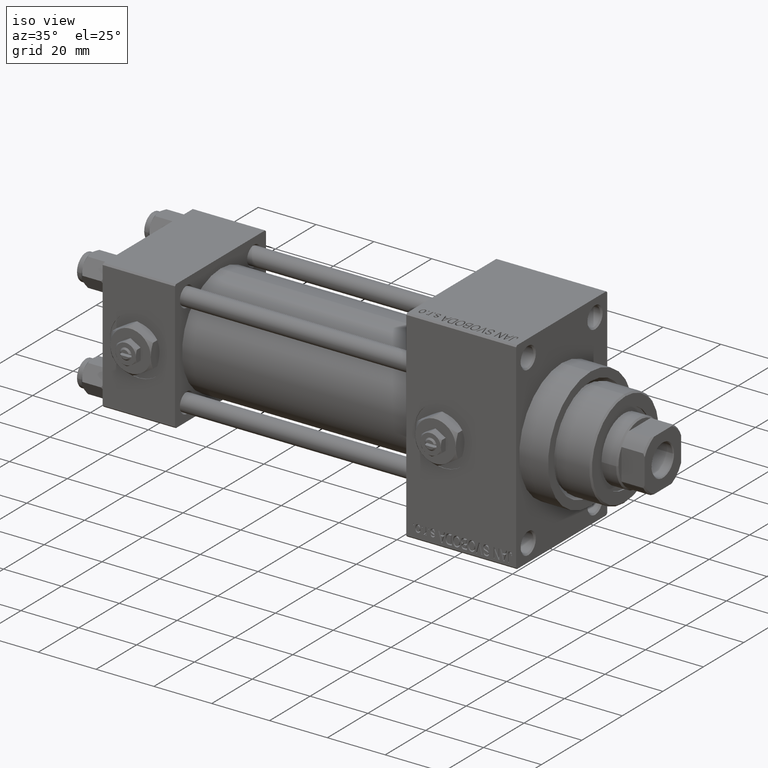
[diagram: clean part render]
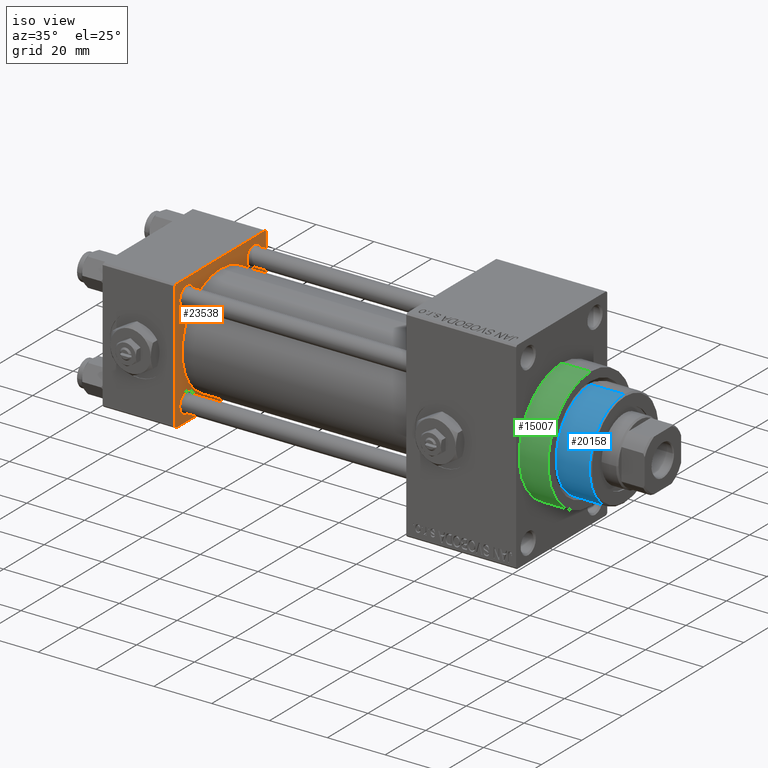
[diagram: same view with three faces highlighted in distinct colors, each labeled with its STEP entity id]
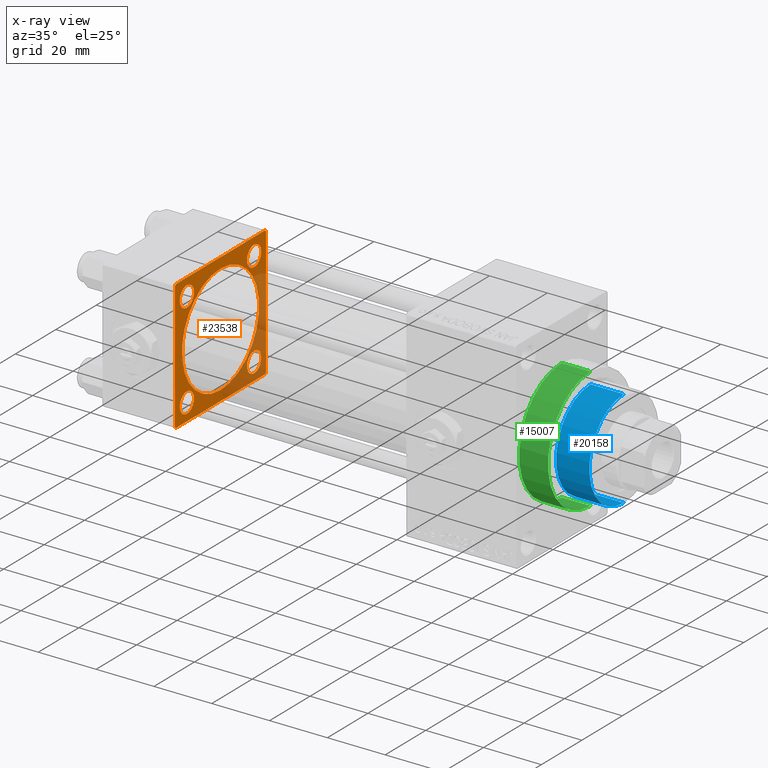
[diagram: x-ray of the same camera — body ghosted, the three highlighted faces saturated]
A machine part, iso view with three faces highlighted in distinct colors.
The next image is the same camera in x-ray (body ghosted, the three faces saturated) — at least one of them is partly hidden behind the body in this view.
Their STEP definitions:

[orange] entity #23538 — the highlighted planar face has unit normal (-1, 0, 0).
#805 = DIRECTION ( 'NONE',  ( 1.000000000000000000, -0.000000000000000000, 0.000000000000000000 ) ) ;
#858 = FACE_BOUND ( 'NONE', #39138, .T. ) ;
#1271 = CARTESIAN_POINT ( 'NONE',  ( 25.00000000000000000, 16.59999999999999787, 16.60000000000000497 ) ) ;
#1344 = ORIENTED_EDGE ( 'NONE', *, *, #44221, .F. ) ;
#1500 = DIRECTION ( 'NONE',  ( 0.000000000000000000, 0.000000000000000000, -1.000000000000000000 ) ) ;
#1614 = EDGE_CURVE ( 'NONE', #6167, #11711, #8585, .T. ) ;
#1843 = CARTESIAN_POINT ( 'NONE',  ( 25.00000000000000000, -21.99999999999998579, -22.50000000000000711 ) ) ;
#1974 = VECTOR ( 'NONE', #6111, 1000.000000000000000 ) ;
#2540 = LINE ( 'NONE', #17703, #37339 ) ;
#2580 = CARTESIAN_POINT ( 'NONE',  ( 25.00000000000000000, -16.59999999999999076, 16.60000000000000853 ) ) ;
#3833 = VERTEX_POINT ( 'NONE', #37562 ) ;
#4090 = EDGE_CURVE ( 'NONE', #29778, #9136, #20593, .T. ) ;
#4468 = DIRECTION ( 'NONE',  ( 0.000000000000000000, 0.000000000000000000, 1.000000000000000000 ) ) ;
#4680 = EDGE_LOOP ( 'NONE', ( #40635, #34208 ) ) ;
#5420 = DIRECTION ( 'NONE',  ( -1.000000000000000000, 0.000000000000000000, -0.000000000000000000 ) ) ;
#5829 = DIRECTION ( 'NONE',  ( 0.000000000000000000, 0.7071067811865426878, -0.7071067811865524577 ) ) ;
#6111 = DIRECTION ( 'NONE',  ( 0.000000000000000000, -1.000000000000000000, -7.709882115452476934E-17 ) ) ;
#6167 = VERTEX_POINT ( 'NONE', #42055 ) ;
#6522 = VERTEX_POINT ( 'NONE', #12578 ) ;
#6644 = CARTESIAN_POINT ( 'NONE',  ( 25.00000000000000000, 22.50000000000000000, -21.99999999999996803 ) ) ;
#7137 = EDGE_CURVE ( 'NONE', #45757, #10026, #47011, .T. ) ;
#7352 = EDGE_CURVE ( 'NONE', #46571, #14000, #28654, .T. ) ;
#7359 = EDGE_LOOP ( 'NONE', ( #33153, #49107 ) ) ;
#7494 = EDGE_CURVE ( 'NONE', #40485, #33703, #44561, .T. ) ;
#8081 = ORIENTED_EDGE ( 'NONE', *, *, #45818, .T. ) ;
#8585 = CIRCLE ( 'NONE', #49056, 3.499999999999978684 ) ;
#8824 = FACE_BOUND ( 'NONE', #7359, .T. ) ;
#9019 = DIRECTION ( 'NONE',  ( 1.000000000000000000, -0.000000000000000000, 0.000000000000000000 ) ) ;
#9136 = VERTEX_POINT ( 'NONE', #43025 ) ;
#9465 = DIRECTION ( 'NONE',  ( -1.000000000000000000, 0.000000000000000000, -0.000000000000000000 ) ) ;
#9909 = ORIENTED_EDGE ( 'NONE', *, *, #37568, .T. ) ;
#10026 = VERTEX_POINT ( 'NONE', #6644 ) ;
#10408 = CARTESIAN_POINT ( 'NONE',  ( 25.00000000000000000, -16.59999999999999076, 20.09999999999998721 ) ) ;
#10584 = CIRCLE ( 'NONE', #28052, 3.500000000000031086 ) ;
#11090 = EDGE_LOOP ( 'NONE', ( #41191, #24725, #1344, #12836, #32635, #9909, #8081, #46421 ) ) ;
#11218 = AXIS2_PLACEMENT_3D ( 'NONE', #39457, #5420, #20563 ) ;
#11468 = DIRECTION ( 'NONE',  ( -1.000000000000000000, 0.000000000000000000, -0.000000000000000000 ) ) ;
#11580 = FACE_BOUND ( 'NONE', #24299, .T. ) ;
#11711 = VERTEX_POINT ( 'NONE', #10408 ) ;
#11936 = VECTOR ( 'NONE', #35836, 1000.000000000000000 ) ;
#12376 = CIRCLE ( 'NONE', #38563, 3.499999999999989342 ) ;
#12475 = DIRECTION ( 'NONE',  ( 0.000000000000000000, 0.000000000000000000, 1.000000000000000000 ) ) ;
#12528 = DIRECTION ( 'NONE',  ( -1.000000000000000000, 0.000000000000000000, -0.000000000000000000 ) ) ;
#12578 = CARTESIAN_POINT ( 'NONE',  ( 25.00000000000000000, 16.59999999999999787, 20.10000000000003340 ) ) ;
#12836 = ORIENTED_EDGE ( 'NONE', *, *, #7494, .T. ) ;
#13117 = VERTEX_POINT ( 'NONE', #30686 ) ;
#13316 = EDGE_CURVE ( 'NONE', #6522, #3833, #37566, .T. ) ;
#13384 = EDGE_CURVE ( 'NONE', #3833, #6522, #10584, .T. ) ;
#13566 = DIRECTION ( 'NONE',  ( 0.000000000000000000, 0.000000000000000000, 1.000000000000000000 ) ) ;
#13892 = AXIS2_PLACEMENT_3D ( 'NONE', #40667, #25016, #13566 ) ;
#14000 = VERTEX_POINT ( 'NONE', #34892 ) ;
#14808 = CIRCLE ( 'NONE', #28276, 19.00000000000000000 ) ;
#15700 = CARTESIAN_POINT ( 'NONE',  ( 24.99999999999999289, -2.752562955852396712E-16, -19.00000000000000000 ) ) ;
#16016 = VERTEX_POINT ( 'NONE', #15700 ) ;
#16950 = EDGE_CURVE ( 'NONE', #11711, #6167, #37691, .T. ) ;
#17297 = VERTEX_POINT ( 'NONE', #30823 ) ;
#17620 = EDGE_LOOP ( 'NONE', ( #19759, #43509 ) ) ;
#17703 = CARTESIAN_POINT ( 'NONE',  ( 25.00000000000000000, 22.50000000000000000, -22.49999999999999645 ) ) ;
#18864 = CARTESIAN_POINT ( 'NONE',  ( 25.00000000000000000, 16.59999999999999787, -16.60000000000000497 ) ) ;
#19103 = DIRECTION ( 'NONE',  ( -1.000000000000000000, 0.000000000000000000, -0.000000000000000000 ) ) ;
#19367 = CARTESIAN_POINT ( 'NONE',  ( 25.00000000000000000, -16.59999999999999076, -16.60000000000000853 ) ) ;
#19516 = DIRECTION ( 'NONE',  ( -0.000000000000000000, 0.000000000000000000, 1.000000000000000000 ) ) ;
#19759 = ORIENTED_EDGE ( 'NONE', *, *, #39443, .T. ) ;
#19892 = CARTESIAN_POINT ( 'NONE',  ( 25.00000000000000000, 22.50000000000000000, 22.50000000000000355 ) ) ;
#20563 = DIRECTION ( 'NONE',  ( 0.000000000000000000, 0.000000000000000000, 1.000000000000000000 ) ) ;
#20593 = CIRCLE ( 'NONE', #22218, 3.499999999999989342 ) ;
#20655 = CARTESIAN_POINT ( 'NONE',  ( 25.00000000000000000, 22.50000000000000000, -21.99999999999998224 ) ) ;
#22218 = AXIS2_PLACEMENT_3D ( 'NONE', #18864, #19103, #30554 ) ;
#22726 = AXIS2_PLACEMENT_3D ( 'NONE', #39321, #805, #12475 ) ;
#23489 = FACE_BOUND ( 'NONE', #4680, .T. ) ;
#23538 = ADVANCED_FACE ( 'NONE', ( #11580, #42126, #858, #8824, #23489, #23975 ), #26743, .F. ) ;
#23975 = FACE_OUTER_BOUND ( 'NONE', #11090, .T. ) ;
#24024 = EDGE_CURVE ( 'NONE', #45757, #25540, #2540, .T. ) ;
#24107 = VECTOR ( 'NONE', #5829, 1000.000000000000000 ) ;
#24299 = EDGE_LOOP ( 'NONE', ( #46448, #33610 ) ) ;
#24725 = ORIENTED_EDGE ( 'NONE', *, *, #7137, .T. ) ;
#24996 = LINE ( 'NONE', #40149, #1974 ) ;
#25016 = DIRECTION ( 'NONE',  ( -1.000000000000000000, 0.000000000000000000, -0.000000000000000000 ) ) ;
#25039 = VECTOR ( 'NONE', #27008, 999.9999999999998863 ) ;
#25204 = CARTESIAN_POINT ( 'NONE',  ( 25.00000000000000000, -22.50000000000000000, 22.50000000000000000 ) ) ;
#25540 = VERTEX_POINT ( 'NONE', #32220 ) ;
#26743 = PLANE ( 'NONE',  #38156 ) ;
#27008 = DIRECTION ( 'NONE',  ( -0.000000000000000000, -0.7071067811865525687, -0.7071067811865425767 ) ) ;
#27234 = AXIS2_PLACEMENT_3D ( 'NONE', #1271, #46246, #30633 ) ;
#27313 = DIRECTION ( 'NONE',  ( -1.000000000000000000, 0.000000000000000000, -0.000000000000000000 ) ) ;
#28052 = AXIS2_PLACEMENT_3D ( 'NONE', #32584, #9465, #28850 ) ;
#28092 = ORIENTED_EDGE ( 'NONE', *, *, #1614, .T. ) ;
#28141 = CARTESIAN_POINT ( 'NONE',  ( 24.99999999999999289, -2.602085213965210642E-15, 0.000000000000000000 ) ) ;
#28276 = AXIS2_PLACEMENT_3D ( 'NONE', #28141, #9019, #35109 ) ;
#28654 = CIRCLE ( 'NONE', #11218, 3.499999999999975131 ) ;
#28850 = DIRECTION ( 'NONE',  ( 0.000000000000000000, 0.000000000000000000, 1.000000000000000000 ) ) ;
#29136 = DIRECTION ( 'NONE',  ( 0.000000000000000000, -1.000000000000000000, -2.312964634635742957E-16 ) ) ;
#29318 = CARTESIAN_POINT ( 'NONE',  ( 25.00000000000000000, -22.50000000000000000, 22.00000000000000000 ) ) ;
#29778 = VERTEX_POINT ( 'NONE', #43686 ) ;
#29887 = VERTEX_POINT ( 'NONE', #30977 ) ;
#30107 = CARTESIAN_POINT ( 'NONE',  ( 25.00000000000000000, 16.59999999999999787, -16.60000000000000497 ) ) ;
#30554 = DIRECTION ( 'NONE',  ( 0.000000000000000000, 0.000000000000000000, 1.000000000000000000 ) ) ;
#30633 = DIRECTION ( 'NONE',  ( 0.000000000000000000, 0.000000000000000000, 1.000000000000000000 ) ) ;
#30686 = CARTESIAN_POINT ( 'NONE',  ( 25.00000000000000000, -21.99999999999997868, 22.50000000000000000 ) ) ;
#30755 = LINE ( 'NONE', #45893, #25039 ) ;
#30823 = CARTESIAN_POINT ( 'NONE',  ( 24.99999999999999289, -2.602085213965210642E-15, 19.00000000000000000 ) ) ;
#30977 = CARTESIAN_POINT ( 'NONE',  ( 25.00000000000000000, -22.50000000000000000, -21.99999999999997158 ) ) ;
#31095 = LINE ( 'NONE', #19892, #40395 ) ;
#31817 = VECTOR ( 'NONE', #37335, 1000.000000000000114 ) ;
#31970 = EDGE_CURVE ( 'NONE', #29887, #25540, #39371, .T. ) ;
#32220 = CARTESIAN_POINT ( 'NONE',  ( 25.00000000000000000, -21.99999999999997158, -22.50000000000000711 ) ) ;
#32584 = CARTESIAN_POINT ( 'NONE',  ( 25.00000000000000000, 16.59999999999999787, 16.60000000000000497 ) ) ;
#32635 = ORIENTED_EDGE ( 'NONE', *, *, #33908, .T. ) ;
#33128 = CARTESIAN_POINT ( 'NONE',  ( 25.00000000000000000, 22.50000000000000000, 21.99999999999999645 ) ) ;
#33153 = ORIENTED_EDGE ( 'NONE', *, *, #13384, .T. ) ;
#33610 = ORIENTED_EDGE ( 'NONE', *, *, #7352, .T. ) ;
#33703 = VERTEX_POINT ( 'NONE', #43372 ) ;
#33908 = EDGE_CURVE ( 'NONE', #33703, #13117, #24996, .T. ) ;
#34208 = ORIENTED_EDGE ( 'NONE', *, *, #41349, .F. ) ;
#34821 = CIRCLE ( 'NONE', #47525, 3.499999999999975131 ) ;
#34892 = CARTESIAN_POINT ( 'NONE',  ( 25.00000000000000000, -16.59999999999999076, -20.09999999999998366 ) ) ;
#35109 = DIRECTION ( 'NONE',  ( 0.000000000000000000, 0.000000000000000000, 1.000000000000000000 ) ) ;
#35836 = DIRECTION ( 'NONE',  ( -0.000000000000000000, 0.7071067811865426878, 0.7071067811865524577 ) ) ;
#36634 = DIRECTION ( 'NONE',  ( 0.000000000000000000, 0.000000000000000000, -1.000000000000000000 ) ) ;
#37335 = DIRECTION ( 'NONE',  ( 0.000000000000000000, -0.7071067811865474617, 0.7071067811865474617 ) ) ;
#37339 = VECTOR ( 'NONE', #29136, 1000.000000000000000 ) ;
#37562 = CARTESIAN_POINT ( 'NONE',  ( 25.00000000000000000, 16.59999999999999787, 13.09999999999997300 ) ) ;
#37566 = CIRCLE ( 'NONE', #27234, 3.500000000000031086 ) ;
#37568 = EDGE_CURVE ( 'NONE', #13117, #46094, #30755, .T. ) ;
#37691 = CIRCLE ( 'NONE', #13892, 3.499999999999978684 ) ;
#38042 = DIRECTION ( 'NONE',  ( 0.000000000000000000, 0.000000000000000000, 1.000000000000000000 ) ) ;
#38156 = AXIS2_PLACEMENT_3D ( 'NONE', #38643, #12528, #19516 ) ;
#38289 = VECTOR ( 'NONE', #36634, 1000.000000000000000 ) ;
#38563 = AXIS2_PLACEMENT_3D ( 'NONE', #30107, #11468, #38042 ) ;
#38643 = CARTESIAN_POINT ( 'NONE',  ( 25.00000000000000000, 0.000000000000000000, 0.000000000000000000 ) ) ;
#38860 = CARTESIAN_POINT ( 'NONE',  ( 25.00000000000000000, 21.99999999999999289, -22.49999999999999645 ) ) ;
#39138 = EDGE_LOOP ( 'NONE', ( #28092, #42123 ) ) ;
#39321 = CARTESIAN_POINT ( 'NONE',  ( 24.99999999999999289, -2.602085213965210642E-15, 0.000000000000000000 ) ) ;
#39364 = LINE ( 'NONE', #25204, #38289 ) ;
#39371 = LINE ( 'NONE', #1843, #24107 ) ;
#39443 = EDGE_CURVE ( 'NONE', #9136, #29778, #12376, .T. ) ;
#39457 = CARTESIAN_POINT ( 'NONE',  ( 25.00000000000000000, -16.59999999999999076, -16.60000000000000853 ) ) ;
#40149 = CARTESIAN_POINT ( 'NONE',  ( 25.00000000000000000, 22.50000000000000000, 22.50000000000000355 ) ) ;
#40395 = VECTOR ( 'NONE', #1500, 1000.000000000000000 ) ;
#40485 = VERTEX_POINT ( 'NONE', #33128 ) ;
#40635 = ORIENTED_EDGE ( 'NONE', *, *, #41363, .F. ) ;
#40667 = CARTESIAN_POINT ( 'NONE',  ( 25.00000000000000000, -16.59999999999999076, 16.60000000000000853 ) ) ;
#40841 = CARTESIAN_POINT ( 'NONE',  ( 25.00000000000000000, 21.99999999999999289, 22.50000000000000355 ) ) ;
#41191 = ORIENTED_EDGE ( 'NONE', *, *, #24024, .F. ) ;
#41349 = EDGE_CURVE ( 'NONE', #16016, #17297, #14808, .T. ) ;
#41363 = EDGE_CURVE ( 'NONE', #17297, #16016, #43358, .T. ) ;
#42055 = CARTESIAN_POINT ( 'NONE',  ( 25.00000000000000000, -16.59999999999999076, 13.10000000000002807 ) ) ;
#42123 = ORIENTED_EDGE ( 'NONE', *, *, #16950, .T. ) ;
#42126 = FACE_BOUND ( 'NONE', #17620, .T. ) ;
#43025 = CARTESIAN_POINT ( 'NONE',  ( 25.00000000000000000, 16.59999999999999787, -20.09999999999999432 ) ) ;
#43358 = CIRCLE ( 'NONE', #22726, 19.00000000000000000 ) ;
#43372 = CARTESIAN_POINT ( 'NONE',  ( 25.00000000000000000, 21.99999999999999289, 22.50000000000000355 ) ) ;
#43509 = ORIENTED_EDGE ( 'NONE', *, *, #4090, .T. ) ;
#43686 = CARTESIAN_POINT ( 'NONE',  ( 25.00000000000000000, 16.59999999999999787, -13.10000000000001386 ) ) ;
#44221 = EDGE_CURVE ( 'NONE', #40485, #10026, #31095, .T. ) ;
#44494 = EDGE_CURVE ( 'NONE', #14000, #46571, #34821, .T. ) ;
#44561 = LINE ( 'NONE', #40841, #31817 ) ;
#45234 = DIRECTION ( 'NONE',  ( 0.000000000000000000, 0.000000000000000000, 1.000000000000000000 ) ) ;
#45757 = VERTEX_POINT ( 'NONE', #38860 ) ;
#45818 = EDGE_CURVE ( 'NONE', #46094, #29887, #39364, .T. ) ;
#45893 = CARTESIAN_POINT ( 'NONE',  ( 25.00000000000000000, -22.50000000000000000, 22.00000000000000000 ) ) ;
#46094 = VERTEX_POINT ( 'NONE', #29318 ) ;
#46178 = CARTESIAN_POINT ( 'NONE',  ( 25.00000000000000000, -16.59999999999999076, -13.10000000000003162 ) ) ;
#46246 = DIRECTION ( 'NONE',  ( -1.000000000000000000, 0.000000000000000000, -0.000000000000000000 ) ) ;
#46421 = ORIENTED_EDGE ( 'NONE', *, *, #31970, .T. ) ;
#46448 = ORIENTED_EDGE ( 'NONE', *, *, #44494, .T. ) ;
#46571 = VERTEX_POINT ( 'NONE', #46178 ) ;
#47011 = LINE ( 'NONE', #20655, #11936 ) ;
#47525 = AXIS2_PLACEMENT_3D ( 'NONE', #19367, #27313, #4468 ) ;
#48962 = DIRECTION ( 'NONE',  ( -1.000000000000000000, 0.000000000000000000, -0.000000000000000000 ) ) ;
#49056 = AXIS2_PLACEMENT_3D ( 'NONE', #2580, #48962, #45234 ) ;
#49107 = ORIENTED_EDGE ( 'NONE', *, *, #13316, .T. ) ;

[blue] entity #20158 — the highlighted cylindrical surface (partial cylindrical patch) has radius 17 mm, axis along (-1, 0, 0).
#554 = ORIENTED_EDGE ( 'NONE', *, *, #26214, .T. ) ;
#2273 = EDGE_CURVE ( 'NONE', #32691, #32254, #2653, .T. ) ;
#2653 = LINE ( 'NONE', #6136, #13402 ) ;
#2904 = DIRECTION ( 'NONE',  ( -0.000000000000000000, -0.000000000000000000, -1.000000000000000000 ) ) ;
#3319 = DIRECTION ( 'NONE',  ( -0.000000000000000000, -0.000000000000000000, -1.000000000000000000 ) ) ;
#5699 = LINE ( 'NONE', #27819, #32703 ) ;
#6136 = CARTESIAN_POINT ( 'NONE',  ( 17.00000000000000000, 2.081899558550500280E-15, 55.26000000000000512 ) ) ;
#8413 = ORIENTED_EDGE ( 'NONE', *, *, #20524, .T. ) ;
#9026 = ORIENTED_EDGE ( 'NONE', *, *, #2273, .T. ) ;
#12712 = VERTEX_POINT ( 'NONE', #12796 ) ;
#12796 = CARTESIAN_POINT ( 'NONE',  ( -17.00000000000000000, 0.000000000000000000, 43.25999999999999801 ) ) ;
#13402 = VECTOR ( 'NONE', #2904, 1000.000000000000000 ) ;
#14447 = CARTESIAN_POINT ( 'NONE',  ( 0.000000000000000000, 0.000000000000000000, 54.76000000000001222 ) ) ;
#14864 = CARTESIAN_POINT ( 'NONE',  ( 0.000000000000000000, 0.000000000000000000, 43.25999999999999801 ) ) ;
#16353 = VERTEX_POINT ( 'NONE', #41759 ) ;
#18470 = DIRECTION ( 'NONE',  ( -1.000000000000000000, 0.000000000000000000, 0.000000000000000000 ) ) ;
#20158 = ADVANCED_FACE ( 'NONE', ( #45791 ), #27573, .T. ) ;
#20524 = EDGE_CURVE ( 'NONE', #32254, #12712, #25437, .T. ) ;
#20648 = AXIS2_PLACEMENT_3D ( 'NONE', #30147, #3319, #18470 ) ;
#25437 = CIRCLE ( 'NONE', #46099, 17.00000000000000000 ) ;
#26214 = EDGE_CURVE ( 'NONE', #16353, #32691, #27110, .T. ) ;
#26484 = EDGE_CURVE ( 'NONE', #16353, #12712, #5699, .T. ) ;
#27110 = CIRCLE ( 'NONE', #39809, 17.00000000000000000 ) ;
#27573 = CYLINDRICAL_SURFACE ( 'NONE', #20648, 17.00000000000000000 ) ;
#27819 = CARTESIAN_POINT ( 'NONE',  ( -17.00000000000000000, 0.000000000000000000, 55.26000000000000512 ) ) ;
#30147 = CARTESIAN_POINT ( 'NONE',  ( 0.000000000000000000, 0.000000000000000000, 55.26000000000000512 ) ) ;
#32254 = VERTEX_POINT ( 'NONE', #42991 ) ;
#32691 = VERTEX_POINT ( 'NONE', #46052 ) ;
#32703 = VECTOR ( 'NONE', #35523, 1000.000000000000000 ) ;
#34499 = DIRECTION ( 'NONE',  ( 0.000000000000000000, 0.000000000000000000, 1.000000000000000000 ) ) ;
#35523 = DIRECTION ( 'NONE',  ( -0.000000000000000000, -0.000000000000000000, -1.000000000000000000 ) ) ;
#36028 = ORIENTED_EDGE ( 'NONE', *, *, #26484, .F. ) ;
#38208 = DIRECTION ( 'NONE',  ( 1.000000000000000000, 0.000000000000000000, 0.000000000000000000 ) ) ;
#39809 = AXIS2_PLACEMENT_3D ( 'NONE', #14447, #40799, #48482 ) ;
#40799 = DIRECTION ( 'NONE',  ( 0.000000000000000000, 0.000000000000000000, -1.000000000000000000 ) ) ;
#41759 = CARTESIAN_POINT ( 'NONE',  ( -17.00000000000000000, 0.000000000000000000, 54.76000000000001222 ) ) ;
#42991 = CARTESIAN_POINT ( 'NONE',  ( 17.00000000000000000, 2.081899558550500280E-15, 43.25999999999999801 ) ) ;
#45553 = EDGE_LOOP ( 'NONE', ( #554, #9026, #8413, #36028 ) ) ;
#45791 = FACE_OUTER_BOUND ( 'NONE', #45553, .T. ) ;
#46052 = CARTESIAN_POINT ( 'NONE',  ( 17.00000000000000000, 2.081899558550500280E-15, 54.76000000000001222 ) ) ;
#46099 = AXIS2_PLACEMENT_3D ( 'NONE', #14864, #34499, #38208 ) ;
#48482 = DIRECTION ( 'NONE',  ( 1.000000000000000000, 0.000000000000000000, 0.000000000000000000 ) ) ;

[green] entity #15007 — the highlighted cylindrical surface (partial cylindrical patch) has radius 21 mm, axis along (-1, -0, -0).
#585 = ORIENTED_EDGE ( 'NONE', *, *, #43852, .F. ) ;
#1331 = CARTESIAN_POINT ( 'NONE',  ( 143.0000000000000284, 0.000000000000000000, 0.000000000000000000 ) ) ;
#2444 = CARTESIAN_POINT ( 'NONE',  ( 153.0000000000000284, 2.571758278209441661E-15, -21.00000000000000000 ) ) ;
#2739 = AXIS2_PLACEMENT_3D ( 'NONE', #22901, #19417, #4025 ) ;
#4025 = DIRECTION ( 'NONE',  ( 0.000000000000000000, 0.000000000000000000, -1.000000000000000000 ) ) ;
#4838 = CARTESIAN_POINT ( 'NONE',  ( 153.0000000000000284, 0.000000000000000000, 21.00000000000000000 ) ) ;
#5253 = VERTEX_POINT ( 'NONE', #2444 ) ;
#6867 = EDGE_CURVE ( 'NONE', #24415, #28784, #9553, .T. ) ;
#8091 = CARTESIAN_POINT ( 'NONE',  ( 153.0000000000000284, 0.000000000000000000, 0.000000000000000000 ) ) ;
#8537 = CARTESIAN_POINT ( 'NONE',  ( 153.0000000000000284, 2.571758278209441661E-15, -21.00000000000000000 ) ) ;
#8763 = VECTOR ( 'NONE', #20719, 1000.000000000000000 ) ;
#9553 = LINE ( 'NONE', #4838, #8763 ) ;
#12114 = CIRCLE ( 'NONE', #24837, 21.00000000000000000 ) ;
#12217 = EDGE_CURVE ( 'NONE', #28784, #45323, #12114, .T. ) ;
#15007 = ADVANCED_FACE ( 'NONE', ( #46091 ), #33956, .T. ) ;
#15671 = CARTESIAN_POINT ( 'NONE',  ( 143.0000000000000284, 0.000000000000000000, 21.00000000000000000 ) ) ;
#16982 = DIRECTION ( 'NONE',  ( 1.000000000000000000, 0.000000000000000000, 0.000000000000000000 ) ) ;
#19273 = DIRECTION ( 'NONE',  ( 0.000000000000000000, 0.000000000000000000, 1.000000000000000000 ) ) ;
#19417 = DIRECTION ( 'NONE',  ( 1.000000000000000000, 0.000000000000000000, 0.000000000000000000 ) ) ;
#20003 = AXIS2_PLACEMENT_3D ( 'NONE', #8091, #30219, #19273 ) ;
#20719 = DIRECTION ( 'NONE',  ( -1.000000000000000000, -0.000000000000000000, -0.000000000000000000 ) ) ;
#22163 = VECTOR ( 'NONE', #43059, 1000.000000000000000 ) ;
#22901 = CARTESIAN_POINT ( 'NONE',  ( 153.0000000000000284, 0.000000000000000000, 0.000000000000000000 ) ) ;
#24352 = ORIENTED_EDGE ( 'NONE', *, *, #12217, .T. ) ;
#24415 = VERTEX_POINT ( 'NONE', #26287 ) ;
#24421 = ORIENTED_EDGE ( 'NONE', *, *, #6867, .T. ) ;
#24438 = DIRECTION ( 'NONE',  ( 0.000000000000000000, 0.000000000000000000, -1.000000000000000000 ) ) ;
#24837 = AXIS2_PLACEMENT_3D ( 'NONE', #1331, #16982, #24438 ) ;
#26287 = CARTESIAN_POINT ( 'NONE',  ( 153.0000000000000284, 0.000000000000000000, 21.00000000000000000 ) ) ;
#28784 = VERTEX_POINT ( 'NONE', #15671 ) ;
#30219 = DIRECTION ( 'NONE',  ( -1.000000000000000000, -0.000000000000000000, -0.000000000000000000 ) ) ;
#31310 = CIRCLE ( 'NONE', #2739, 21.00000000000000000 ) ;
#33064 = EDGE_CURVE ( 'NONE', #24415, #5253, #31310, .T. ) ;
#33430 = ORIENTED_EDGE ( 'NONE', *, *, #33064, .F. ) ;
#33956 = CYLINDRICAL_SURFACE ( 'NONE', #20003, 21.00000000000000000 ) ;
#35376 = LINE ( 'NONE', #8537, #22163 ) ;
#39719 = CARTESIAN_POINT ( 'NONE',  ( 143.0000000000000284, 2.571758278209441661E-15, -21.00000000000000000 ) ) ;
#43059 = DIRECTION ( 'NONE',  ( -1.000000000000000000, -0.000000000000000000, -0.000000000000000000 ) ) ;
#43583 = EDGE_LOOP ( 'NONE', ( #585, #33430, #24421, #24352 ) ) ;
#43852 = EDGE_CURVE ( 'NONE', #5253, #45323, #35376, .T. ) ;
#45323 = VERTEX_POINT ( 'NONE', #39719 ) ;
#46091 = FACE_OUTER_BOUND ( 'NONE', #43583, .T. ) ;